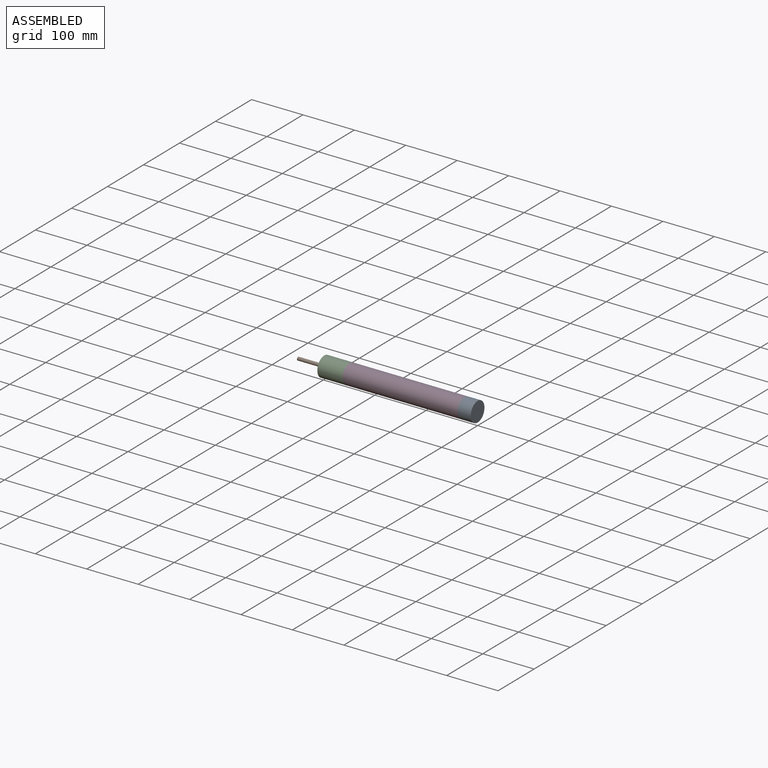
[diagram: assembled view]
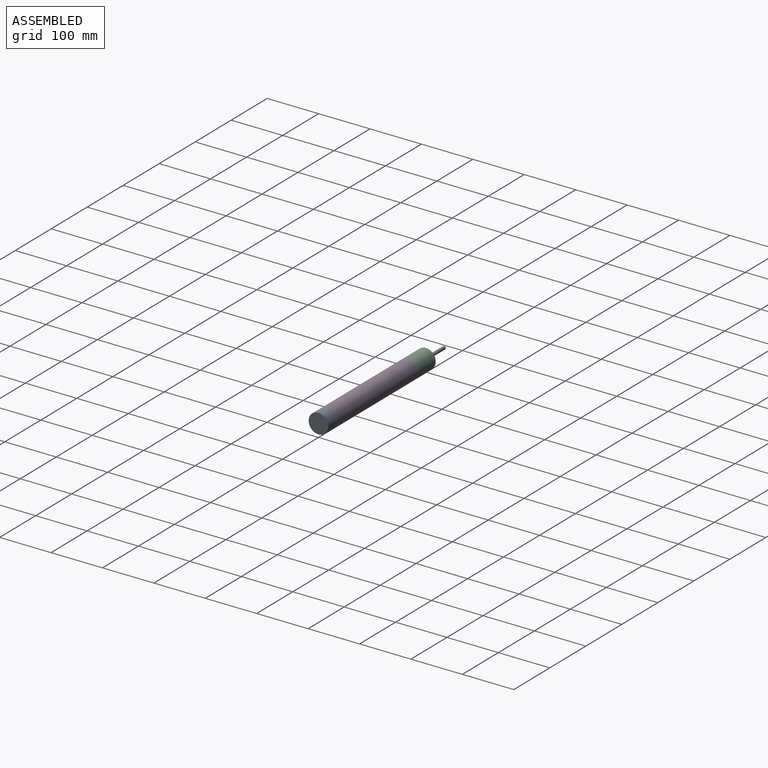
[diagram: assembled view, second angle]
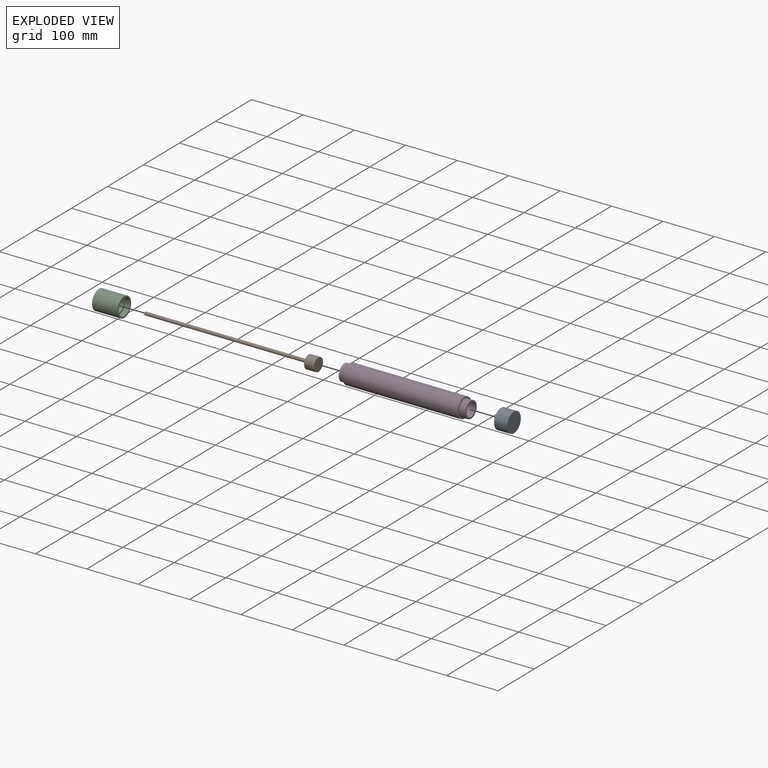
[diagram: exploded view]
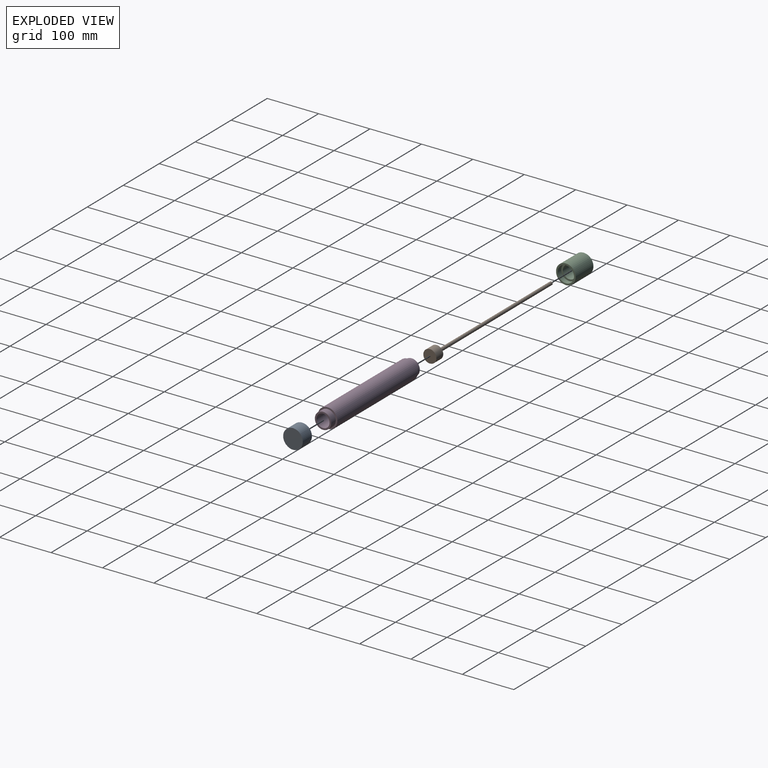
[diagram: exploded view, second angle]
ASSEMBLY  parts=4 mates=3
PART A: 7 faces, bbox 38.1x38.1x25.4 mm
  f0: cylinder r=19.05mm len=38.1mm, axis (0,0,1), area 3040.2mm2, adj f1,f6
  f1: plane 38.1x38.1mm, normal (0,0,-1), area 1140.1mm2, adj f0
  f2: plane 25.4x25.4mm, normal (0,0,1), area 506.7mm2, adj f3
  f3: cylinder r=12.7mm len=25.4mm, axis (0,0,1), area 444.2mm2, adj f2,f4
  f4: plane 31.75x31.75mm, normal (0,0,1), area 285mm2, adj f3,f5
  f5: cylinder r=15.88mm len=31.75mm, axis (0,0,1), area 1266.8mm2, adj f4,f6
  f6: plane 38.1x38.1mm, normal (0,0,1), area 348.4mm2, adj f0,f5
PART B: 5 faces, bbox 25.4x25.4x336.6 mm
  f0: plane 25.4x25.4mm, normal (0,0,1), area 475mm2, adj f1,f4
  f1: cylinder r=12.7mm len=25.4mm, axis (0,0,1), area 1520.1mm2, adj f0,f2
  f2: plane 25.4x25.4mm, normal (0,0,-1), area 506.7mm2, adj f1
  f3: plane 6.35x6.35mm, normal (0,0,1), area 31.7mm2, adj f4
  f4: cylinder r=3.17mm len=317.5mm, axis (0,0,1), area 6333.8mm2, adj f0,f3
PART C: 8 faces, bbox 38.1x38.1x49.5 mm
  f0: plane 25.4x25.4mm, normal (0,0,-1), area 475mm2, adj f1,f7
  f1: cylinder r=3.17mm len=12.7mm, axis (0,0,1), area 253.4mm2, adj f0,f2
  f2: plane 38.1x38.1mm, normal (0,0,1), area 1108.4mm2, adj f1,f3
  f3: cylinder r=19.05mm len=49.51mm, axis (0,0,1), area 5925.9mm2, adj f2,f4
  f4: plane 38.1x38.1mm, normal (0,0,-1), area 348.4mm2, adj f3,f5
  f5: cylinder r=15.88mm len=31.75mm, axis (0,0,1), area 997.4mm2, adj f4,f6
  f6: plane 31.75x31.75mm, normal (0,0,-1), area 285mm2, adj f5,f7
  f7: cylinder r=12.7mm len=26.81mm, axis (0,0,1), area 2139.3mm2, adj f0,f6
PART D: 8 faces, bbox 38.1x38.1x246.2 mm
  f0: cylinder r=19.05mm len=223.54mm, axis (0,0,1), area 26756.7mm2, adj f1,f7
  f1: plane 38.1x38.1mm, normal (0,0,-1), area 348.4mm2, adj f0,f2
  f2: cylinder r=15.88mm len=31.75mm, axis (0,0,1), area 1266.8mm2, adj f1,f3
  f3: plane 31.75x31.75mm, normal (0,0,-1), area 285mm2, adj f2,f4
  f4: cylinder r=12.7mm len=246.24mm, axis (0,0,1), area 19649.2mm2, adj f3,f5
  f5: plane 31.75x31.75mm, normal (0,0,1), area 285mm2, adj f4,f6
  f6: cylinder r=15.88mm len=31.75mm, axis (0,0,1), area 997.4mm2, adj f5,f7
  f7: plane 38.1x38.1mm, normal (0,0,1), area 348.4mm2, adj f0,f6
PLACE A rot(axis=(0,-1,0),90deg) t=(0,0,0)mm
PLACE B rot(axis=(-0.08,-0.99,0.08),90.3deg) t=(0,0,0)mm
PLACE C rot(axis=(0,-1,0),90deg) t=(0,0,0)mm
PLACE D rot(axis=(0,-1,0),90deg) t=(0,0,0)mm
MATE cylindrical D.f0 <-> B.f1  axis (1,0,0) through (-12.7,0,0)mm
MATE fastened D.f0 <-> C.f1  axis (-1,0,0) through (-248.94,0,0)mm
MATE fastened D.f0 <-> A.f0  axis (1,0,0) through (-25.4,0,0)mm
